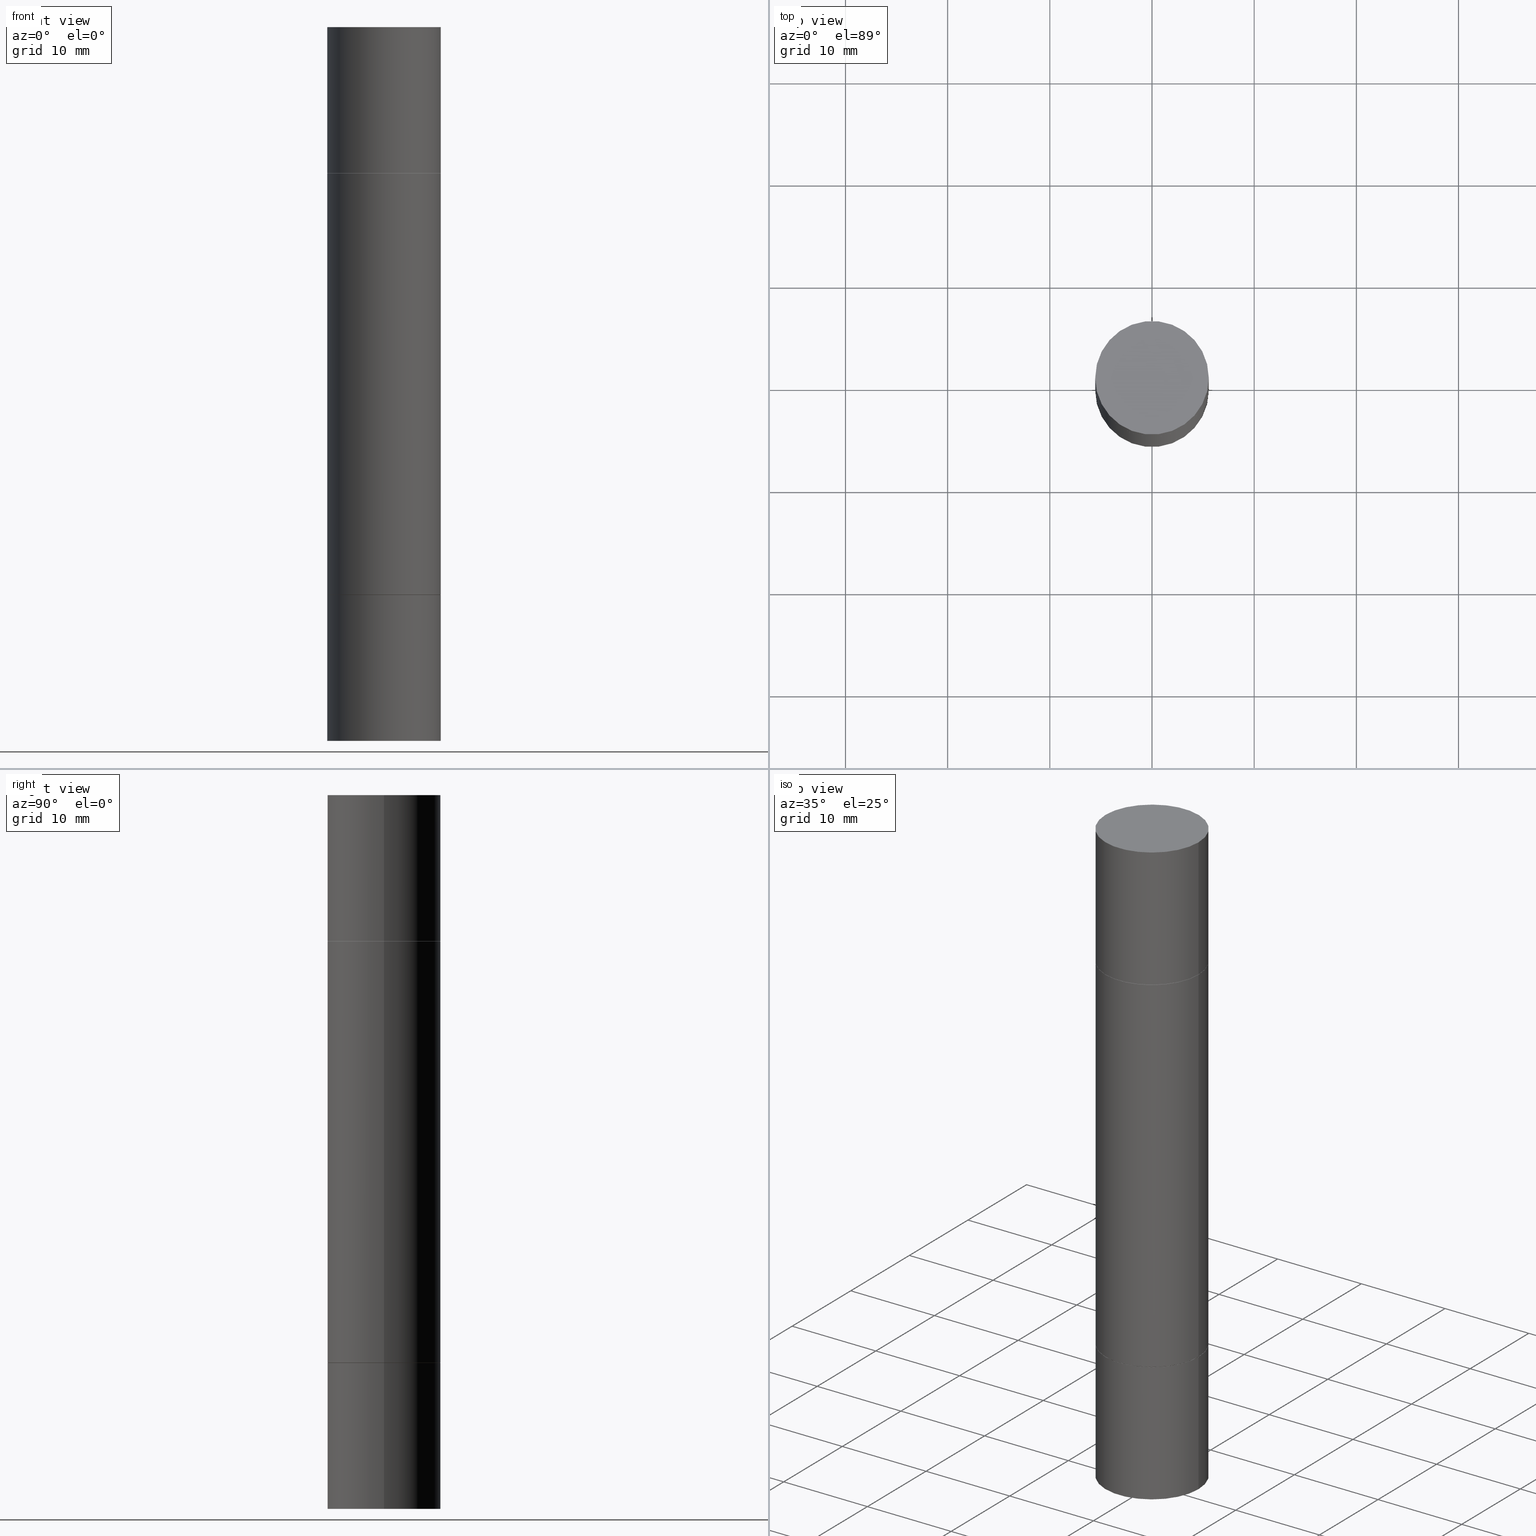
[diagram: canonical four-view strip — front | top / right | iso, engineering-drawing reading convention]
A machine part, canonical four-view strip (front | top / right | iso — engineering-drawing reading convention). The complete STEP part file that produces these views, byte-faithful:
ISO-10303-21;
HEADER;
FILE_DESCRIPTION (( 'STEP AP203' ),
    '1' );
FILE_NAME ('31188.STEP',
    '2024-03-04T15:41:28',
    ( '' ),
    ( '' ),
    'SwSTEP 2.0',
    'SolidWorks 2023',
    '' );
FILE_SCHEMA (( 'CONFIG_CONTROL_DESIGN' ));
ENDSEC;

DATA;
#1 = CIRCLE ( 'NONE', #371, 0.2187500000000000000 ) ;
#2 = CALENDAR_DATE ( 2024, 4, 3 ) ;
#3 = DIRECTION ( 'NONE',  ( 1.000000000000000000, -6.982962677686266711E-15, 0.000000000000000000 ) ) ;
#4 = SECURITY_CLASSIFICATION_LEVEL ( 'unclassified' ) ;
#5 = PLANE ( 'NONE',  #330 ) ;
#6 = MECHANICAL_CONTEXT ( 'NONE', #669, 'mechanical' ) ;
#7 = FACE_OUTER_BOUND ( 'NONE', #466, .T. ) ;
#8 = ORIENTED_EDGE ( 'NONE', *, *, #278, .F. ) ;
#9 = AXIS2_PLACEMENT_3D ( 'NONE', #461, #663, #385 ) ;
#10 = DATE_AND_TIME ( #484, #216 ) ;
#11 = DIRECTION ( 'NONE',  ( 1.000000000000000000, -6.982962677686265922E-15, 4.876176775795935793E-29 ) ) ;
#12 = ADVANCED_FACE ( 'NONE', ( #312 ), #672, .F. ) ;
#13 = EDGE_CURVE ( 'NONE', #513, #402, #413, .T. ) ;
#14 = ADVANCED_FACE ( 'NONE', ( #104 ), #363, .T. ) ;
#15 = FACE_OUTER_BOUND ( 'NONE', #660, .T. ) ;
#16 = CARTESIAN_POINT ( 'NONE',  ( -0.2187500000000000000, -8.102777219780460014E-15, -2.749999999999999556 ) ) ;
#17 = VERTEX_POINT ( 'NONE', #317 ) ;
#18 = AXIS2_PLACEMENT_3D ( 'NONE', #64, #581, #533 ) ;
#19 = AXIS2_PLACEMENT_3D ( 'NONE', #88, #31, #151 ) ;
#20 = DIRECTION ( 'NONE',  ( 1.000000000000000000, -6.982962677686267499E-15, 0.000000000000000000 ) ) ;
#21 = DIRECTION ( 'NONE',  ( -2.445468806185136597E-29, 3.491481338843145583E-15, 1.000000000000000000 ) ) ;
#22 = VERTEX_POINT ( 'NONE', #476 ) ;
#23 = ORIENTED_EDGE ( 'NONE', *, *, #595, .T. ) ;
#24 = CYLINDRICAL_SURFACE ( 'NONE', #553, 0.2187499999999998612 ) ;
#25 = ORIENTED_EDGE ( 'NONE', *, *, #213, .F. ) ;
#26 = EDGE_LOOP ( 'NONE', ( #124, #191 ) ) ;
#27 = DIRECTION ( 'NONE',  ( 1.000000000000000000, -6.982962677686267499E-15, 0.000000000000000000 ) ) ;
#28 = DIRECTION ( 'NONE',  ( 1.000000000000000000, -6.982962677686265922E-15, 9.839502134516470631E-33 ) ) ;
#29 = PRODUCT ( '31188', '31188', '', ( #6 ) ) ;
#30 = VERTEX_POINT ( 'NONE', #677 ) ;
#31 = DIRECTION ( 'NONE',  ( -2.445468806185136597E-29, 3.491481338843145583E-15, 1.000000000000000000 ) ) ;
#32 = CIRCLE ( 'NONE', #225, 0.2187500000000000000 ) ;
#33 = VECTOR ( 'NONE', #253, 39.37007874015748143 ) ;
#34 = DIRECTION ( 'NONE',  ( -2.445468806185136597E-29, 3.491481338843145583E-15, 1.000000000000000000 ) ) ;
#35 = ORIENTED_EDGE ( 'NONE', *, *, #382, .T. ) ;
#36 = ORIENTED_EDGE ( 'NONE', *, *, #579, .T. ) ;
#37 = EDGE_CURVE ( 'NONE', #391, #645, #321, .T. ) ;
#38 = EDGE_CURVE ( 'NONE', #491, #30, #623, .T. ) ;
#39 = EDGE_CURVE ( 'NONE', #361, #654, #271, .T. ) ;
#40 = DIRECTION ( 'NONE',  ( 1.000000000000000000, -6.982962677686266711E-15, 0.000000000000000000 ) ) ;
#41 = DIRECTION ( 'NONE',  ( -2.445468806185136597E-29, -3.492890411551752677E-15, -1.000000000000000000 ) ) ;
#42 = CLOSED_SHELL ( 'NONE', ( #580, #158, #561, #437 ) ) ;
#43 = LINE ( 'NONE', #249, #453 ) ;
#44 = DIRECTION ( 'NONE',  ( 2.445468806185136597E-29, 3.492890411551752677E-15, 1.000000000000000000 ) ) ;
#45 = EDGE_CURVE ( 'NONE', #361, #30, #43, .T. ) ;
#46 = CARTESIAN_POINT ( 'NONE',  ( 0.2187499999999998612, -1.113103424253685260E-14, -2.749999999999999556 ) ) ;
#47 = DIRECTION ( 'NONE',  ( 1.000000000000000000, -6.982962677686266711E-15, 0.000000000000000000 ) ) ;
#48 = APPLICATION_PROTOCOL_DEFINITION ( 'international standard', 'config_control_design', 1994, #181 ) ;
#49 = DIRECTION ( 'NONE',  ( -0.000000000000000000, -3.492185875197449130E-15, -1.000000000000000000 ) ) ;
#50 = COORDINATED_UNIVERSAL_TIME_OFFSET ( 5, 0, .BEHIND. ) ;
#51 = CIRCLE ( 'NONE', #108, 0.2177499999999999991 ) ;
#52 = MANIFOLD_SOLID_BREP ( 'Combine1', #178 ) ;
#53 = DIRECTION ( 'NONE',  ( -1.000000000000000000, 6.982962677686265922E-15, -9.839502134516470631E-33 ) ) ;
#54 = DATE_AND_TIME ( #320, #387 ) ;
#55 = CARTESIAN_POINT ( 'NONE',  ( 0.2187500000000000000, -3.488590022061618704E-15, -0.5619999999999996110 ) ) ;
#56 = DATE_AND_TIME ( #2, #323 ) ;
#57 = MANIFOLD_SOLID_BREP ( 'Mirror1[1]', #411 ) ;
#58 = DIRECTION ( 'NONE',  ( -2.445468806185136597E-29, -3.492890411551752677E-15, -1.000000000000000000 ) ) ;
#59 = DIRECTION ( 'NONE',  ( -2.445468806185136597E-29, 3.491481338843145583E-15, 1.000000000000000000 ) ) ;
#60 = EDGE_CURVE ( 'NONE', #402, #513, #143, .T. ) ;
#61 = AXIS2_PLACEMENT_3D ( 'NONE', #275, #59, #376 ) ;
#62 = CIRCLE ( 'NONE', #642, 0.2187500000000000000 ) ;
#63 = DIRECTION ( 'NONE',  ( 2.445468806185136597E-29, 3.492890411551752677E-15, 1.000000000000000000 ) ) ;
#64 = CARTESIAN_POINT ( 'NONE',  ( 5.350685747933077986E-29, -1.961066936317747467E-15, -0.5619999999999996110 ) ) ;
#65 = LINE ( 'NONE', #552, #441 ) ;
#66 = CARTESIAN_POINT ( 'NONE',  ( 6.725039217009124520E-29, 1.937474974335603146E-18, 5.463695987328526437E-16 ) ) ;
#67 = ORIENTED_EDGE ( 'NONE', *, *, #579, .F. ) ;
#68 = CYLINDRICAL_SURFACE ( 'NONE', #74, 0.2187499999999998612 ) ;
#69 = CARTESIAN_POINT ( 'NONE',  ( -0.2187499999999998612, -8.102777219780461591E-15, -2.749999999999999556 ) ) ;
#70 = ORIENTED_EDGE ( 'NONE', *, *, #278, .T. ) ;
#71 = AXIS2_PLACEMENT_3D ( 'NONE', #421, #49, #367 ) ;
#72 = CIRCLE ( 'NONE', #345, 0.2187500000000000000 ) ;
#73 = ORIENTED_EDGE ( 'NONE', *, *, #482, .F. ) ;
#74 = AXIS2_PLACEMENT_3D ( 'NONE', #495, #229, #27 ) ;
#75 = CARTESIAN_POINT ( 'NONE',  ( -0.2187500000000000000, 5.211692063408171100E-16, -0.5619999999999996110 ) ) ;
#76 = CARTESIAN_POINT ( 'NONE',  ( 5.350685747933077986E-29, -7.639361169388800962E-15, -2.187999999999999723 ) ) ;
#77 = DESIGN_CONTEXT ( 'detailed design', #181, 'design' ) ;
#78 = ORIENTED_EDGE ( 'NONE', *, *, #506, .F. ) ;
#79 = ORIENTED_EDGE ( 'NONE', *, *, #60, .T. ) ;
#80 = PLANE ( 'NONE',  #250 ) ;
#81 = ORIENTED_EDGE ( 'NONE', *, *, #594, .F. ) ;
#82 = VERTEX_POINT ( 'NONE', #519 ) ;
#83 = DIRECTION ( 'NONE',  ( -2.445468806185136877E-29, -3.492890411551753071E-15, -1.000000000000000000 ) ) ;
#84 = EDGE_LOOP ( 'NONE', ( #67, #661, #338, #142 ) ) ;
#85 = EDGE_CURVE ( 'NONE', #232, #184, #223, .T. ) ;
#86 = EDGE_CURVE ( 'NONE', #184, #289, #473, .T. ) ;
#87 = EDGE_LOOP ( 'NONE', ( #499, #394 ) ) ;
#88 = CARTESIAN_POINT ( 'NONE',  ( 5.350685747933077986E-29, -7.639361169388800962E-15, -2.187999999999999723 ) ) ;
#89 = EDGE_CURVE ( 'NONE', #564, #551, #368, .T. ) ;
#90 = AXIS2_PLACEMENT_3D ( 'NONE', #652, #233, #400 ) ;
#91 = DIRECTION ( 'NONE',  ( -2.445468806185136597E-29, 3.491481338843145583E-15, 1.000000000000000000 ) ) ;
#92 = VERTEX_POINT ( 'NONE', #101 ) ;
#93 = CARTESIAN_POINT ( 'NONE',  ( -0.2187500000000000000, 5.211692063408171100E-16, -0.5619999999999996110 ) ) ;
#94 = DIRECTION ( 'NONE',  ( 2.438088387897960049E-29, -3.491481338843145188E-15, -1.000000000000000000 ) ) ;
#95 = CARTESIAN_POINT ( 'NONE',  ( -0.2187499999999998612, -1.881939396806789345E-15, -1.374999999999999778 ) ) ;
#96 = ADVANCED_FACE ( 'NONE', ( #523 ), #254, .T. ) ;
#97 = DIRECTION ( 'NONE',  ( 2.445468806185136597E-29, 3.492890411551752677E-15, 1.000000000000000000 ) ) ;
#98 = LINE ( 'NONE', #571, #302 ) ;
#99 = VECTOR ( 'NONE', #643, 39.37007874015748143 ) ;
#100 = SECURITY_CLASSIFICATION ( '', '', #4 ) ;
#101 = CARTESIAN_POINT ( 'NONE',  ( -0.2177499999999999991, -6.086855907922961200E-15, -2.187999999999999723 ) ) ;
#102 = DATE_TIME_ROLE ( 'classification_date' ) ;
#103 = PERSON ( 'UNSPECIFIED', 'UNSPECIFIED', 'UNSPECIFIED', ('UNSPECIFIED'), ('UNSPECIFIED'), ('UNSPECIFIED') ) ;
#104 = FACE_OUTER_BOUND ( 'NONE', #619, .T. ) ;
#105 = PERSON_AND_ORGANIZATION ( #103, #457 ) ;
#106 = CARTESIAN_POINT ( 'NONE',  ( 6.725039217009124520E-29, 1.937474974335603146E-18, 5.463695987328526437E-16 ) ) ;
#107 = ADVANCED_FACE ( 'NONE', ( #155 ), #259, .T. ) ;
#108 = AXIS2_PLACEMENT_3D ( 'NONE', #319, #381, #428 ) ;
#109 = DIRECTION ( 'NONE',  ( 2.445468806185136597E-29, 3.492890411551752677E-15, 1.000000000000000000 ) ) ;
#110 = PERSON_AND_ORGANIZATION_ROLE ( 'creator' ) ;
#111 = DIRECTION ( 'NONE',  ( 1.000000000000000000, -6.982962677686267499E-15, 0.000000000000000000 ) ) ;
#112 = EDGE_LOOP ( 'NONE', ( #78, #296, #556, #429 ) ) ;
#113 = DIRECTION ( 'NONE',  ( 2.438088387897959769E-29, 3.492890411551753071E-15, 1.000000000000000000 ) ) ;
#114 = CC_DESIGN_PERSON_AND_ORGANIZATION_ASSIGNMENT ( #166, #325, ( #480 ) ) ;
#115 = APPROVAL ( #524, 'UNSPECIFIED' ) ;
#116 = FACE_OUTER_BOUND ( 'NONE', #498, .T. ) ;
#117 = ORIENTED_EDGE ( 'NONE', *, *, #89, .T. ) ;
#118 = AXIS2_PLACEMENT_3D ( 'NONE', #568, #91, #514 ) ;
#119 = CONICAL_SURFACE ( 'NONE', #227, 0.2177499999999999991, 0.7853981633973970977 ) ;
#120 = PLANE ( 'NONE',  #90 ) ;
#121 = DIRECTION ( 'NONE',  ( -2.445468806185136597E-29, -3.492890411551752677E-15, -1.000000000000000000 ) ) ;
#122 = EDGE_LOOP ( 'NONE', ( #177, #403, #511, #607 ) ) ;
#123 = DIRECTION ( 'NONE',  ( -2.445468806185136597E-29, -3.492890411551752677E-15, -1.000000000000000000 ) ) ;
#124 = ORIENTED_EDGE ( 'NONE', *, *, #256, .F. ) ;
#125 = ORIENTED_EDGE ( 'NONE', *, *, #135, .F. ) ;
#126 = DIRECTION ( 'NONE',  ( 1.000000000000000000, -6.982962677686269077E-15, 0.000000000000000000 ) ) ;
#127 = EDGE_LOOP ( 'NONE', ( #8, #247, #464, #139 ) ) ;
#128 = CIRCLE ( 'NONE', #61, 0.2187500000000000000 ) ;
#129 = APPROVAL_PERSON_ORGANIZATION ( #481, #115, #628 ) ;
#130 = CARTESIAN_POINT ( 'NONE',  ( 0.2187500000000000000, -3.488590022061618704E-15, -0.5619999999999996110 ) ) ;
#131 = ORIENTED_EDGE ( 'NONE', *, *, #148, .T. ) ;
#132 = EDGE_LOOP ( 'NONE', ( #593, #117 ) ) ;
#133 = DIRECTION ( 'NONE',  ( 1.000000000000000000, -6.982962677686262766E-15, 0.000000000000000000 ) ) ;
#134 = DIRECTION ( 'NONE',  ( 1.000000000000000000, -6.982962677686266711E-15, 0.000000000000000000 ) ) ;
#135 = EDGE_CURVE ( 'NONE', #645, #391, #206, .T. ) ;
#136 = EDGE_CURVE ( 'NONE', #17, #22, #358, .T. ) ;
#137 = ORIENTED_EDGE ( 'NONE', *, *, #266, .T. ) ;
#138 = ADVANCED_FACE ( 'NONE', ( #15 ), #204, .T. ) ;
#139 = ORIENTED_EDGE ( 'NONE', *, *, #45, .F. ) ;
#140 = FACE_OUTER_BOUND ( 'NONE', #547, .T. ) ;
#141 = CARTESIAN_POINT ( 'NONE',  ( 5.348240279126892383E-29, -1.964559826729300003E-15, -0.5629999999999997229 ) ) ;
#142 = ORIENTED_EDGE ( 'NONE', *, *, #222, .F. ) ;
#143 = CIRCLE ( 'NONE', #656, 0.2177499999999999991 ) ;
#144 = VECTOR ( 'NONE', #543, 39.37007874015748143 ) ;
#145 = DIRECTION ( 'NONE',  ( 2.438088387897960049E-29, -3.491481338843145188E-15, -1.000000000000000000 ) ) ;
#146 = AXIS2_PLACEMENT_3D ( 'NONE', #590, #449, #133 ) ;
#147 = CARTESIAN_POINT ( 'NONE',  ( 1.527523085743924091E-15, 0.2187499999999980294, -0.5620000000000004992 ) ) ;
#148 = EDGE_CURVE ( 'NONE', #184, #232, #671, .T. ) ;
#149 = DIRECTION ( 'NONE',  ( 1.000000000000000000, -6.982962677686267499E-15, 0.000000000000000000 ) ) ;
#150 = CARTESIAN_POINT ( 'NONE',  ( 5.348240279126892383E-29, -1.964559826729300003E-15, -0.5629999999999997229 ) ) ;
#151 = DIRECTION ( 'NONE',  ( 1.000000000000000000, -6.982962677686266711E-15, 0.000000000000000000 ) ) ;
#152 = DIRECTION ( 'NONE',  ( -1.000000000000000000, 6.982962677686265922E-15, -4.876176775795935793E-29 ) ) ;
#153 = CIRCLE ( 'NONE', #510, 0.2187500000000000000 ) ;
#154 = CC_DESIGN_APPROVAL ( #238, ( #314 ) ) ;
#155 = FACE_OUTER_BOUND ( 'NONE', #646, .T. ) ;
#156 = MANIFOLD_SOLID_BREP ( 'Body-Move/Copy2[1]', #474 ) ;
#157 = DIRECTION ( 'NONE',  ( 1.000000000000000000, -6.982962677686266711E-15, 0.000000000000000000 ) ) ;
#158 = ADVANCED_FACE ( 'NONE', ( #7 ), #5, .T. ) ;
#159 = ADVANCED_FACE ( 'NONE', ( #161 ), #583, .T. ) ;
#160 = EDGE_CURVE ( 'NONE', #490, #82, #128, .T. ) ;
#161 = FACE_OUTER_BOUND ( 'NONE', #655, .T. ) ;
#162 = ORIENTED_EDGE ( 'NONE', *, *, #313, .T. ) ;
#163 = PERSON_AND_ORGANIZATION ( #103, #457 ) ;
#164 = CARTESIAN_POINT ( 'NONE',  ( 5.350685747933077986E-29, -1.961066936317747467E-15, -0.5619999999999996110 ) ) ;
#165 = CIRCLE ( 'NONE', #146, 0.2187500000000000000 ) ;
#166 = PERSON_AND_ORGANIZATION ( #103, #457 ) ;
#167 = FACE_OUTER_BOUND ( 'NONE', #127, .T. ) ;
#168 = DIRECTION ( 'NONE',  ( 1.000000000000000000, -6.982962677686267499E-15, 0.000000000000000000 ) ) ;
#169 = DIRECTION ( 'NONE',  ( -2.445468806185136597E-29, 3.491481338843145583E-15, 1.000000000000000000 ) ) ;
#170 = CC_DESIGN_APPROVAL ( #559, ( #480 ) ) ;
#171 = FACE_OUTER_BOUND ( 'NONE', #84, .T. ) ;
#172 = ORIENTED_EDGE ( 'NONE', *, *, #37, .F. ) ;
#173 = ORIENTED_EDGE ( 'NONE', *, *, #627, .F. ) ;
#174 = CARTESIAN_POINT ( 'NONE',  ( 0.2187500000000000000, -1.113103424253685260E-14, -2.749999999999999556 ) ) ;
#175 = DIRECTION ( 'NONE',  ( 1.000000000000000000, -6.982962677686262766E-15, 0.000000000000000000 ) ) ;
#176 = ORIENTED_EDGE ( 'NONE', *, *, #638, .T. ) ;
#177 = ORIENTED_EDGE ( 'NONE', *, *, #595, .F. ) ;
#178 = CLOSED_SHELL ( 'NONE', ( #650, #528, #637, #442, #138, #207, #420, #187 ) ) ;
#179 = CARTESIAN_POINT ( 'NONE',  ( 5.350685747933077986E-29, -1.961066936317747467E-15, -0.5619999999999996110 ) ) ;
#180 = FACE_OUTER_BOUND ( 'NONE', #235, .T. ) ;
#181 = APPLICATION_CONTEXT ( 'configuration controlled 3d designs of mechanical parts and assemblies' ) ;
#182 = ORIENTED_EDGE ( 'NONE', *, *, #537, .F. ) ;
#183 = VECTOR ( 'NONE', #430, 39.37007874015748143 ) ;
#184 = VERTEX_POINT ( 'NONE', #483 ) ;
#185 = VECTOR ( 'NONE', #545, 39.37007874015748143 ) ;
#186 = DIRECTION ( 'NONE',  ( 2.438088387897959769E-29, 3.492890411551753071E-15, 1.000000000000000000 ) ) ;
#187 = ADVANCED_FACE ( 'NONE', ( #116 ), #529, .F. ) ;
#188 = CARTESIAN_POINT ( 'NONE',  ( 0.2177499999999999991, -3.481607059383932295E-15, -0.5619999999999996110 ) ) ;
#189 = EDGE_LOOP ( 'NONE', ( #81, #502 ) ) ;
#190 = EDGE_CURVE ( 'NONE', #599, #226, #369, .T. ) ;
#191 = ORIENTED_EDGE ( 'NONE', *, *, #638, .F. ) ;
#192 = CARTESIAN_POINT ( 'NONE',  ( -0.2187499999999998612, -8.102777219780461591E-15, -2.749999999999999556 ) ) ;
#193 = DIRECTION ( 'NONE',  ( 0.000000000000000000, 3.492185875197449524E-15, 1.000000000000000000 ) ) ;
#194 = EDGE_LOOP ( 'NONE', ( #606, #550, #613, #228 ) ) ;
#195 = DIRECTION ( 'NONE',  ( 1.000000000000000000, -6.982962677686266711E-15, 0.000000000000000000 ) ) ;
#196 = AXIS2_PLACEMENT_3D ( 'NONE', #624, #44, #252 ) ;
#197 = VECTOR ( 'NONE', #343, 39.37007874015748143 ) ;
#198 = CARTESIAN_POINT ( 'NONE',  ( 5.350685747933077986E-29, -1.961066936317747467E-15, -0.5619999999999996110 ) ) ;
#199 = ORIENTED_EDGE ( 'NONE', *, *, #676, .T. ) ;
#200 = PLANE ( 'NONE',  #416 ) ;
#201 = DIRECTION ( 'NONE',  ( -2.445468806185136877E-29, -3.492890411551753071E-15, -1.000000000000000000 ) ) ;
#202 = CARTESIAN_POINT ( 'NONE',  ( 0.2187499999999999445, -3.492082912473170057E-15, -0.5629999999999997229 ) ) ;
#203 = CARTESIAN_POINT ( 'NONE',  ( 0.000000000000000000, -9.603511156792982543E-15, -2.749999999999999556 ) ) ;
#204 = CONICAL_SURFACE ( 'NONE', #431, 0.2177499999999999991, 0.7853981633973970977 ) ;
#205 = EDGE_CURVE ( 'NONE', #300, #490, #586, .T. ) ;
#206 = CIRCLE ( 'NONE', #589, 0.2187499999999999445 ) ;
#207 = ADVANCED_FACE ( 'NONE', ( #273 ), #219, .T. ) ;
#208 = AXIS2_PLACEMENT_3D ( 'NONE', #217, #328, #375 ) ;
#209 = CARTESIAN_POINT ( 'NONE',  ( 5.348240279126892383E-29, -1.964559826729300003E-15, -0.5629999999999997229 ) ) ;
#210 = APPROVAL_DATE_TIME ( #56, #115 ) ;
#211 = DATE_AND_TIME ( #477, #488 ) ;
#212 = DIRECTION ( 'NONE',  ( -2.438088387897960049E-29, 3.491481338843145188E-15, 1.000000000000000000 ) ) ;
#213 = EDGE_CURVE ( 'NONE', #92, #297, #51, .T. ) ;
#214 = AXIS2_PLACEMENT_3D ( 'NONE', #337, #450, #653 ) ;
#215 = DIRECTION ( 'NONE',  ( -2.445468806185136877E-29, -3.492890411551753071E-15, -1.000000000000000000 ) ) ;
#216 = LOCAL_TIME ( 10, 41, 28.00000000000000000, #50 ) ;
#217 = CARTESIAN_POINT ( 'NONE',  ( 0.000000000000000000, 0.000000000000000000, 0.000000000000000000 ) ) ;
#218 = ADVANCED_BREP_SHAPE_REPRESENTATION ( '31188', ( #156, #57, #286, #522, #52, #208 ), #359 ) ;
#219 = CYLINDRICAL_SURFACE ( 'NONE', #397, 0.2187499999999998612 ) ;
#220 = CARTESIAN_POINT ( 'NONE',  ( 0.2177499999999999991, -3.481607059383932295E-15, -0.5619999999999996110 ) ) ;
#221 = CARTESIAN_POINT ( 'NONE',  ( 5.350685747933077986E-29, -7.639361169388800962E-15, -2.187999999999999723 ) ) ;
#222 = EDGE_CURVE ( 'NONE', #82, #490, #153, .T. ) ;
#223 = CIRCLE ( 'NONE', #196, 0.2187500000000000000 ) ;
#224 = LINE ( 'NONE', #69, #625 ) ;
#225 = AXIS2_PLACEMENT_3D ( 'NONE', #454, #340, #175 ) ;
#226 = VERTEX_POINT ( 'NONE', #374 ) ;
#227 = AXIS2_PLACEMENT_3D ( 'NONE', #569, #41, #404 ) ;
#228 = ORIENTED_EDGE ( 'NONE', *, *, #594, .T. ) ;
#229 = DIRECTION ( 'NONE',  ( -2.445468806185136597E-29, -3.492890411551752677E-15, -1.000000000000000000 ) ) ;
#230 = DIRECTION ( 'NONE',  ( 1.000000000000000000, -6.982962677686266711E-15, 0.000000000000000000 ) ) ;
#231 = EDGE_LOOP ( 'NONE', ( #610, #36, #463, #451 ) ) ;
#232 = VERTEX_POINT ( 'NONE', #629 ) ;
#233 = DIRECTION ( 'NONE',  ( -2.438088387897959769E-29, -3.492890411551753071E-15, -1.000000000000000000 ) ) ;
#234 = CARTESIAN_POINT ( 'NONE',  ( 5.350685747933077986E-29, -1.961066936317747467E-15, -0.5619999999999996110 ) ) ;
#235 = EDGE_LOOP ( 'NONE', ( #245, #79 ) ) ;
#236 = EDGE_LOOP ( 'NONE', ( #172, #162, #536, #601 ) ) ;
#237 = DIRECTION ( 'NONE',  ( 0.7071067811865112684, -7.407546758114119172E-15, -0.7071067811865837660 ) ) ;
#238 = APPROVAL ( #270, 'UNSPECIFIED' ) ;
#239 = FACE_OUTER_BOUND ( 'NONE', #132, .T. ) ;
#240 = EDGE_LOOP ( 'NONE', ( #341, #70 ) ) ;
#241 = AXIS2_PLACEMENT_3D ( 'NONE', #203, #304, #423 ) ;
#242 = AXIS2_PLACEMENT_3D ( 'NONE', #588, #269, #486 ) ;
#243 = ORIENTED_EDGE ( 'NONE', *, *, #407, .T. ) ;
#244 = DIRECTION ( 'NONE',  ( 0.000000000000000000, 1.000000000000000000, -3.492185875197449524E-15 ) ) ;
#245 = ORIENTED_EDGE ( 'NONE', *, *, #13, .T. ) ;
#246 = CARTESIAN_POINT ( 'NONE',  ( -0.2177499999999999991, -4.655096935098871103E-16, -0.5619999999999996110 ) ) ;
#247 = ORIENTED_EDGE ( 'NONE', *, *, #627, .T. ) ;
#248 = DIRECTION ( 'NONE',  ( -1.000000000000000000, 6.982962677686265922E-15, -9.839502134516470631E-33 ) ) ;
#249 = CARTESIAN_POINT ( 'NONE',  ( 0.2177499999999999991, -3.481607059383932295E-15, -0.5619999999999996110 ) ) ;
#250 = AXIS2_PLACEMENT_3D ( 'NONE', #396, #604, #28 ) ;
#251 = CYLINDRICAL_SURFACE ( 'NONE', #531, 0.2187500000000000000 ) ;
#252 = DIRECTION ( 'NONE',  ( 1.000000000000000000, -6.982962677686266711E-15, 0.000000000000000000 ) ) ;
#253 = DIRECTION ( 'NONE',  ( -2.445468806185136877E-29, -3.492890411551753071E-15, -1.000000000000000000 ) ) ;
#254 = CYLINDRICAL_SURFACE ( 'NONE', #241, 0.2187500000000000000 ) ;
#255 = ADVANCED_FACE ( 'NONE', ( #167 ), #633, .T. ) ;
#256 = EDGE_CURVE ( 'NONE', #444, #505, #72, .T. ) ;
#257 = PERSON_AND_ORGANIZATION ( #103, #457 ) ;
#258 = CC_DESIGN_PERSON_AND_ORGANIZATION_ASSIGNMENT ( #257, #260, ( #100 ) ) ;
#259 = PLANE ( 'NONE',  #468 ) ;
#260 = PERSON_AND_ORGANIZATION_ROLE ( 'classification_officer' ) ;
#261 = AXIS2_PLACEMENT_3D ( 'NONE', #141, #365, #195 ) ;
#262 = CONICAL_SURFACE ( 'NONE', #641, 0.2177499999999999991, 0.7853981633973970977 ) ;
#263 = VECTOR ( 'NONE', #237, 39.37007874015748143 ) ;
#264 = CARTESIAN_POINT ( 'NONE',  ( 6.725039217009124520E-29, 1.937474974335603146E-18, 5.463695987328526437E-16 ) ) ;
#265 = PERSON_AND_ORGANIZATION ( #103, #457 ) ;
#266 = EDGE_CURVE ( 'NONE', #599, #505, #587, .T. ) ;
#267 = DIRECTION ( 'NONE',  ( 1.000000000000000000, -6.982962677686267499E-15, 0.000000000000000000 ) ) ;
#268 = SHAPE_DEFINITION_REPRESENTATION ( #608, #218 ) ;
#269 = DIRECTION ( 'NONE',  ( -2.445468806185136597E-29, -3.492890411551752677E-15, -1.000000000000000000 ) ) ;
#270 = APPROVAL_STATUS ( 'not_yet_approved' ) ;
#271 = CIRCLE ( 'NONE', #355, 0.2177499999999999991 ) ;
#272 = CIRCLE ( 'NONE', #440, 0.2187499999999999445 ) ;
#273 = FACE_OUTER_BOUND ( 'NONE', #346, .T. ) ;
#274 = LINE ( 'NONE', #220, #263 ) ;
#275 = CARTESIAN_POINT ( 'NONE',  ( 5.350685747933077986E-29, -7.639361169388800962E-15, -2.187999999999999723 ) ) ;
#276 = ORIENTED_EDGE ( 'NONE', *, *, #527, .T. ) ;
#277 = EDGE_CURVE ( 'NONE', #402, #391, #433, .T. ) ;
#278 = EDGE_CURVE ( 'NONE', #654, #361, #479, .T. ) ;
#279 = CARTESIAN_POINT ( 'NONE',  ( 0.2187500000000000000, -9.166884255132671016E-15, -2.187999999999999723 ) ) ;
#280 = CC_DESIGN_DATE_AND_TIME_ASSIGNMENT ( #54, #427, ( #314 ) ) ;
#281 = CYLINDRICAL_SURFACE ( 'NONE', #530, 0.2187500000000000000 ) ;
#282 = ORIENTED_EDGE ( 'NONE', *, *, #277, .F. ) ;
#283 = AXIS2_PLACEMENT_3D ( 'NONE', #570, #94, #152 ) ;
#284 = CARTESIAN_POINT ( 'NONE',  ( 0.000000000000000000, 0.000000000000000000, 0.000000000000000000 ) ) ;
#285 = AXIS2_PLACEMENT_3D ( 'NONE', #221, #212, #11 ) ;
#286 = MANIFOLD_SOLID_BREP ( 'Mirror1[3]', #42 ) ;
#287 = ORIENTED_EDGE ( 'NONE', *, *, #435, .T. ) ;
#288 = CC_DESIGN_APPROVAL ( #115, ( #100 ) ) ;
#289 = VERTEX_POINT ( 'NONE', #55 ) ;
#290 = CARTESIAN_POINT ( 'NONE',  ( -0.2177499999999999991, -6.092154362271183602E-15, -2.187999999999999723 ) ) ;
#291 = DIRECTION ( 'NONE',  ( 1.000000000000000000, -6.982962677686266711E-15, 0.000000000000000000 ) ) ;
#292 = ORIENTED_EDGE ( 'NONE', *, *, #45, .T. ) ;
#293 = CC_DESIGN_PERSON_AND_ORGANIZATION_ASSIGNMENT ( #631, #434, ( #29 ) ) ;
#294 = ORIENTED_EDGE ( 'NONE', *, *, #506, .T. ) ;
#295 = FACE_OUTER_BOUND ( 'NONE', #112, .T. ) ;
#296 = ORIENTED_EDGE ( 'NONE', *, *, #213, .T. ) ;
#297 = VERTEX_POINT ( 'NONE', #509 ) ;
#298 =( CONVERSION_BASED_UNIT ( 'INCH', #666 ) LENGTH_UNIT ( ) NAMED_UNIT ( #356 ) );
#299 = CARTESIAN_POINT ( 'NONE',  ( 0.000000000000000000, -9.603511156792982543E-15, -2.749999999999999556 ) ) ;
#300 = VERTEX_POINT ( 'NONE', #504 ) ;
#301 = AXIS2_PLACEMENT_3D ( 'NONE', #106, #636, #3 ) ;
#302 = VECTOR ( 'NONE', #673, 39.37007874015748143 ) ;
#303 = CIRCLE ( 'NONE', #658, 0.2187500000000000000 ) ;
#304 = DIRECTION ( 'NONE',  ( -2.445468806185136597E-29, -3.492890411551752677E-15, -1.000000000000000000 ) ) ;
#305 = ORIENTED_EDGE ( 'NONE', *, *, #60, .F. ) ;
#306 = DIRECTION ( 'NONE',  ( -2.445468806185136877E-29, -3.492890411551753071E-15, -1.000000000000000000 ) ) ;
#307 = DIRECTION ( 'NONE',  ( 2.438088387897959769E-29, 3.492890411551753071E-15, 1.000000000000000000 ) ) ;
#308 = CARTESIAN_POINT ( 'NONE',  ( 1.527523085743924091E-15, 0.2187499999999923395, -2.188000000000000611 ) ) ;
#309 = DIRECTION ( 'NONE',  ( 2.445468806185136597E-29, 3.492890411551752677E-15, 1.000000000000000000 ) ) ;
#310 = CIRCLE ( 'NONE', #9, 0.2187499999999998612 ) ;
#311 = CARTESIAN_POINT ( 'NONE',  ( -0.2187500000000000000, 1.554312234475219157E-15, -1.076017050993260622E-29 ) ) ;
#312 = FACE_OUTER_BOUND ( 'NONE', #26, .T. ) ;
#313 = EDGE_CURVE ( 'NONE', #391, #17, #224, .T. ) ;
#314 = PRODUCT_DEFINITION ( 'UNKNOWN', '', #480, #77 ) ;
#315 = APPROVAL_ROLE ( '' ) ;
#316 = ADVANCED_FACE ( 'NONE', ( #390 ), #281, .T. ) ;
#317 = CARTESIAN_POINT ( 'NONE',  ( -0.2187499999999999445, -3.300052903896800034E-15, -2.186999999999999833 ) ) ;
#318 = APPROVAL_STATUS ( 'not_yet_approved' ) ;
#319 = CARTESIAN_POINT ( 'NONE',  ( 5.350685747933077986E-29, -7.639361169388800962E-15, -2.187999999999999723 ) ) ;
#320 = CALENDAR_DATE ( 2024, 4, 3 ) ;
#321 = CIRCLE ( 'NONE', #261, 0.2187499999999999445 ) ;
#322 = CIRCLE ( 'NONE', #415, 0.2187499999999999445 ) ;
#323 = LOCAL_TIME ( 10, 41, 28.00000000000000000, #424 ) ;
#324 = CARTESIAN_POINT ( 'NONE',  ( -0.2177499999999999991, -4.671934973029966481E-16, -0.5619999999999996110 ) ) ;
#325 = PERSON_AND_ORGANIZATION_ROLE ( 'creator' ) ;
#326 = DIRECTION ( 'NONE',  ( -2.445468806185136597E-29, 3.491481338843145583E-15, 1.000000000000000000 ) ) ;
#327 = ORIENTED_EDGE ( 'NONE', *, *, #676, .F. ) ;
#328 = DIRECTION ( 'NONE',  ( 0.000000000000000000, 0.000000000000000000, 1.000000000000000000 ) ) ;
#329 = CARTESIAN_POINT ( 'NONE',  ( 0.000000000000000000, -9.603511156792982543E-15, -2.749999999999999556 ) ) ;
#330 = AXIS2_PLACEMENT_3D ( 'NONE', #384, #113, #53 ) ;
#331 = CARTESIAN_POINT ( 'NONE',  ( -0.2187500000000000000, -8.102777219780460014E-15, -2.749999999999999556 ) ) ;
#332 = VECTOR ( 'NONE', #306, 39.37007874015748143 ) ;
#333 = EDGE_CURVE ( 'NONE', #448, #300, #32, .T. ) ;
#334 = ADVANCED_FACE ( 'NONE', ( #546 ), #501, .T. ) ;
#335 = ADVANCED_FACE ( 'NONE', ( #171 ), #393, .T. ) ;
#336 = LINE ( 'NONE', #290, #185 ) ;
#337 = CARTESIAN_POINT ( 'NONE',  ( 0.000000000000000000, -9.603511156792982543E-15, -2.749999999999999556 ) ) ;
#338 = ORIENTED_EDGE ( 'NONE', *, *, #205, .T. ) ;
#339 = LINE ( 'NONE', #174, #99 ) ;
#340 = DIRECTION ( 'NONE',  ( -2.445468806185136597E-29, 3.491481338843145583E-15, 1.000000000000000000 ) ) ;
#341 = ORIENTED_EDGE ( 'NONE', *, *, #39, .T. ) ;
#342 = ORIENTED_EDGE ( 'NONE', *, *, #13, .F. ) ;
#343 = DIRECTION ( 'NONE',  ( -2.445468806185136877E-29, -3.492890411551753071E-15, -1.000000000000000000 ) ) ;
#344 = UNCERTAINTY_MEASURE_WITH_UNIT (LENGTH_MEASURE( 1.000000000000000082E-05 ), #298, 'distance_accuracy_value', 'NONE');
#345 = AXIS2_PLACEMENT_3D ( 'NONE', #164, #109, #168 ) ;
#346 = EDGE_LOOP ( 'NONE', ( #555, #125, #398, #651 ) ) ;
#347 = FACE_OUTER_BOUND ( 'NONE', #236, .T. ) ;
#348 = DIRECTION ( 'NONE',  ( 1.000000000000000000, -6.982962677686267499E-15, 0.000000000000000000 ) ) ;
#349 = ORIENTED_EDGE ( 'NONE', *, *, #435, .F. ) ;
#350 = EDGE_LOOP ( 'NONE', ( #305, #560, #558, #182 ) ) ;
#351 = FACE_OUTER_BOUND ( 'NONE', #194, .T. ) ;
#352 = ORIENTED_EDGE ( 'NONE', *, *, #266, .F. ) ;
#353 = ORIENTED_EDGE ( 'NONE', *, *, #460, .F. ) ;
#354 = DIRECTION ( 'NONE',  ( -2.445468806185136877E-29, 3.491481338843145188E-15, 1.000000000000000000 ) ) ;
#355 = AXIS2_PLACEMENT_3D ( 'NONE', #574, #97, #525 ) ;
#356 = DIMENSIONAL_EXPONENTS ( 1.000000000000000000, 0.000000000000000000, 0.000000000000000000, 0.000000000000000000, 0.000000000000000000, 0.000000000000000000, 0.000000000000000000 ) ;
#357 = DIRECTION ( 'NONE',  ( 1.000000000000000000, -6.982962677686266711E-15, 0.000000000000000000 ) ) ;
#358 = CIRCLE ( 'NONE', #118, 0.2187499999999999445 ) ;
#359 =( GEOMETRIC_REPRESENTATION_CONTEXT ( 3 ) GLOBAL_UNCERTAINTY_ASSIGNED_CONTEXT ( ( #344 ) ) GLOBAL_UNIT_ASSIGNED_CONTEXT ( ( #298, #412, #362 ) ) REPRESENTATION_CONTEXT ( 'NONE', 'WORKASPACE' ) );
#360 = EDGE_CURVE ( 'NONE', #22, #17, #272, .T. ) ;
#361 = VERTEX_POINT ( 'NONE', #188 ) ;
#362 =( NAMED_UNIT ( * ) SI_UNIT ( $, .STERADIAN. ) SOLID_ANGLE_UNIT ( ) );
#363 = PLANE ( 'NONE',  #283 ) ;
#364 = DIRECTION ( 'NONE',  ( 1.000000000000000000, -6.982962677686267499E-15, 0.000000000000000000 ) ) ;
#365 = DIRECTION ( 'NONE',  ( 2.445468806185136597E-29, 3.492890411551752677E-15, 1.000000000000000000 ) ) ;
#366 = DIRECTION ( 'NONE',  ( -2.445468806185136597E-29, -3.492890411551752677E-15, -1.000000000000000000 ) ) ;
#367 = DIRECTION ( 'NONE',  ( 0.000000000000000000, 1.000000000000000000, -3.746534391310991923E-15 ) ) ;
#368 = CIRCLE ( 'NONE', #71, 0.2187499999999998612 ) ;
#369 = CIRCLE ( 'NONE', #301, 0.2187500000000000000 ) ;
#370 = DATE_AND_TIME ( #635, #614 ) ;
#371 = AXIS2_PLACEMENT_3D ( 'NONE', #662, #573, #364 ) ;
#372 = DIRECTION ( 'NONE',  ( 2.438088387897959769E-29, 3.492890411551753071E-15, 1.000000000000000000 ) ) ;
#373 = PERSON_AND_ORGANIZATION_ROLE ( 'design_supplier' ) ;
#374 = CARTESIAN_POINT ( 'NONE',  ( 0.2187500000000000000, -1.525585610769535201E-15, 5.463695987328526437E-16 ) ) ;
#375 = DIRECTION ( 'NONE',  ( 1.000000000000000000, 0.000000000000000000, 0.000000000000000000 ) ) ;
#376 = DIRECTION ( 'NONE',  ( 1.000000000000000000, -6.982962677686262766E-15, 0.000000000000000000 ) ) ;
#377 = EDGE_LOOP ( 'NONE', ( #173, #395, #292, #243 ) ) ;
#378 = VECTOR ( 'NONE', #201, 39.37007874015748143 ) ;
#379 = AXIS2_PLACEMENT_3D ( 'NONE', #66, #609, #291 ) ;
#380 = CARTESIAN_POINT ( 'NONE',  ( 0.000000000000000000, -9.603511156792982543E-15, -2.749999999999999556 ) ) ;
#381 = DIRECTION ( 'NONE',  ( -2.445468806185136597E-29, 3.491481338843145583E-15, 1.000000000000000000 ) ) ;
#382 = EDGE_CURVE ( 'NONE', #232, #649, #401, .T. ) ;
#383 = ADVANCED_FACE ( 'NONE', ( #443 ), #24, .T. ) ;
#384 = CARTESIAN_POINT ( 'NONE',  ( 1.527523085743937699E-15, 0.2187500000000000000, -5.463695987328526437E-16 ) ) ;
#385 = DIRECTION ( 'NONE',  ( 0.000000000000000000, 1.000000000000000000, -3.746534391310991923E-15 ) ) ;
#386 = AXIS2_PLACEMENT_3D ( 'NONE', #264, #535, #436 ) ;
#387 = LOCAL_TIME ( 10, 41, 28.00000000000000000, #538 ) ;
#388 = DIRECTION ( 'NONE',  ( -2.445468806185136597E-29, 3.491481338843145583E-15, 1.000000000000000000 ) ) ;
#389 = DIRECTION ( 'NONE',  ( 0.7071067811865112684, -2.468850131081876830E-15, 0.7071067811865837660 ) ) ;
#390 = FACE_OUTER_BOUND ( 'NONE', #667, .T. ) ;
#391 = VERTEX_POINT ( 'NONE', #597 ) ;
#392 = ORIENTED_EDGE ( 'NONE', *, *, #492, .F. ) ;
#393 = CYLINDRICAL_SURFACE ( 'NONE', #679, 0.2187500000000000000 ) ;
#394 = ORIENTED_EDGE ( 'NONE', *, *, #222, .T. ) ;
#395 = ORIENTED_EDGE ( 'NONE', *, *, #39, .F. ) ;
#396 = CARTESIAN_POINT ( 'NONE',  ( 5.350685747933077986E-29, -1.961066936317747467E-15, -0.5619999999999996110 ) ) ;
#397 = AXIS2_PLACEMENT_3D ( 'NONE', #329, #58, #111 ) ;
#398 = ORIENTED_EDGE ( 'NONE', *, *, #621, .T. ) ;
#399 = ORIENTED_EDGE ( 'NONE', *, *, #622, .F. ) ;
#400 = DIRECTION ( 'NONE',  ( 1.000000000000000000, -6.982962677686265922E-15, 9.839502134516470631E-33 ) ) ;
#401 = LINE ( 'NONE', #16, #197 ) ;
#402 = VERTEX_POINT ( 'NONE', #639 ) ;
#403 = ORIENTED_EDGE ( 'NONE', *, *, #407, .F. ) ;
#404 = DIRECTION ( 'NONE',  ( 1.000000000000000000, -6.982962677686266711E-15, 0.000000000000000000 ) ) ;
#405 = CARTESIAN_POINT ( 'NONE',  ( 0.000000000000000000, 0.000000000000000000, -1.374999999999999778 ) ) ;
#406 = ADVANCED_FACE ( 'NONE', ( #592 ), #262, .T. ) ;
#407 = EDGE_CURVE ( 'NONE', #30, #491, #322, .T. ) ;
#408 = ORIENTED_EDGE ( 'NONE', *, *, #85, .T. ) ;
#409 = CC_DESIGN_PERSON_AND_ORGANIZATION_ASSIGNMENT ( #265, #110, ( #314 ) ) ;
#410 = ORIENTED_EDGE ( 'NONE', *, *, #537, .T. ) ;
#411 = CLOSED_SHELL ( 'NONE', ( #159, #255, #459, #507, #406, #383 ) ) ;
#412 =( NAMED_UNIT ( * ) PLANE_ANGLE_UNIT ( ) SI_UNIT ( $, .RADIAN. ) );
#413 = CIRCLE ( 'NONE', #670, 0.2177499999999999991 ) ;
#414 = DIRECTION ( 'NONE',  ( 2.445468806185136597E-29, 3.492890411551752677E-15, 1.000000000000000000 ) ) ;
#415 = AXIS2_PLACEMENT_3D ( 'NONE', #446, #497, #554 ) ;
#416 = AXIS2_PLACEMENT_3D ( 'NONE', #308, #145, #618 ) ;
#417 = FACE_OUTER_BOUND ( 'NONE', #350, .T. ) ;
#418 = DIRECTION ( 'NONE',  ( 0.7071067811865112684, -7.407546758114119172E-15, -0.7071067811865837660 ) ) ;
#419 = CARTESIAN_POINT ( 'NONE',  ( 0.2187499999999998612, -1.113103424253685260E-14, -2.749999999999999556 ) ) ;
#420 = ADVANCED_FACE ( 'NONE', ( #295 ), #575, .T. ) ;
#421 = CARTESIAN_POINT ( 'NONE',  ( 3.362519608504561700E-29, -4.800786840909324141E-15, -1.374999999999999778 ) ) ;
#422 = DIRECTION ( 'NONE',  ( -2.445468806185136597E-29, 3.491481338843145583E-15, 1.000000000000000000 ) ) ;
#423 = DIRECTION ( 'NONE',  ( 1.000000000000000000, -6.982962677686262766E-15, 0.000000000000000000 ) ) ;
#424 = COORDINATED_UNIVERSAL_TIME_OFFSET ( 5, 0, .BEHIND. ) ;
#425 = AXIS2_PLACEMENT_3D ( 'NONE', #438, #186, #248 ) ;
#426 = DIRECTION ( 'NONE',  ( 2.445468806185136597E-29, 3.492890411551752677E-15, 1.000000000000000000 ) ) ;
#427 = DATE_TIME_ROLE ( 'creation_date' ) ;
#428 = DIRECTION ( 'NONE',  ( 1.000000000000000000, -6.982962677686266711E-15, 0.000000000000000000 ) ) ;
#429 = ORIENTED_EDGE ( 'NONE', *, *, #136, .F. ) ;
#430 = DIRECTION ( 'NONE',  ( -2.445468806185136877E-29, 3.491481338843145188E-15, 1.000000000000000000 ) ) ;
#431 = AXIS2_PLACEMENT_3D ( 'NONE', #485, #489, #157 ) ;
#432 = CONICAL_SURFACE ( 'NONE', #19, 0.2177499999999999991, 0.7853981633973970977 ) ;
#433 = LINE ( 'NONE', #324, #144 ) ;
#434 = PERSON_AND_ORGANIZATION_ROLE ( 'design_owner' ) ;
#435 = EDGE_CURVE ( 'NONE', #226, #599, #520, .T. ) ;
#436 = DIRECTION ( 'NONE',  ( 1.000000000000000000, -6.982962677686266711E-15, 0.000000000000000000 ) ) ;
#437 = ADVANCED_FACE ( 'NONE', ( #351 ), #563, .T. ) ;
#438 = CARTESIAN_POINT ( 'NONE',  ( 1.527523085743924091E-15, 0.2187499999999980294, -0.5620000000000004992 ) ) ;
#439 = DIRECTION ( 'NONE',  ( 1.000000000000000000, -6.982962677686266711E-15, 4.876176775795935232E-29 ) ) ;
#440 = AXIS2_PLACEMENT_3D ( 'NONE', #659, #388, #126 ) ;
#441 = VECTOR ( 'NONE', #389, 39.37007874015748143 ) ;
#442 = ADVANCED_FACE ( 'NONE', ( #180 ), #80, .F. ) ;
#443 = FACE_OUTER_BOUND ( 'NONE', #122, .T. ) ;
#444 = VERTEX_POINT ( 'NONE', #130 ) ;
#445 = ORIENTED_EDGE ( 'NONE', *, *, #190, .F. ) ;
#446 = CARTESIAN_POINT ( 'NONE',  ( 5.348240279126892383E-29, -1.964559826729300003E-15, -0.5629999999999997229 ) ) ;
#447 = ORIENTED_EDGE ( 'NONE', *, *, #256, .T. ) ;
#448 = VERTEX_POINT ( 'NONE', #557 ) ;
#449 = DIRECTION ( 'NONE',  ( -2.445468806185136597E-29, 3.491481338843145583E-15, 1.000000000000000000 ) ) ;
#450 = DIRECTION ( 'NONE',  ( -2.445468806185136597E-29, -3.492890411551752677E-15, -1.000000000000000000 ) ) ;
#451 = ORIENTED_EDGE ( 'NONE', *, *, #205, .F. ) ;
#452 = CARTESIAN_POINT ( 'NONE',  ( 0.2187499999999998612, -4.910196419563181534E-15, -1.374999999999999778 ) ) ;
#453 = VECTOR ( 'NONE', #418, 39.37007874015748143 ) ;
#454 = CARTESIAN_POINT ( 'NONE',  ( 6.725039217009124520E-29, -9.601573681818649859E-15, -2.750000000000000000 ) ) ;
#455 = AXIS2_PLACEMENT_3D ( 'NONE', #380, #634, #267 ) ;
#456 = ORIENTED_EDGE ( 'NONE', *, *, #333, .F. ) ;
#457 = ORGANIZATION ( 'UNSPECIFIED', 'UNSPECIFIED', '' ) ;
#458 = FACE_OUTER_BOUND ( 'NONE', #664, .T. ) ;
#459 = ADVANCED_FACE ( 'NONE', ( #239 ), #611, .F. ) ;
#460 = EDGE_CURVE ( 'NONE', #551, #564, #310, .T. ) ;
#461 = CARTESIAN_POINT ( 'NONE',  ( 3.362519608504561700E-29, -4.800786840909324141E-15, -1.374999999999999778 ) ) ;
#462 = CC_DESIGN_DATE_AND_TIME_ASSIGNMENT ( #211, #102, ( #100 ) ) ;
#463 = ORIENTED_EDGE ( 'NONE', *, *, #160, .F. ) ;
#464 = ORIENTED_EDGE ( 'NONE', *, *, #38, .T. ) ;
#465 = FACE_OUTER_BOUND ( 'NONE', #87, .T. ) ;
#466 = EDGE_LOOP ( 'NONE', ( #131, #408 ) ) ;
#467 = DIRECTION ( 'NONE',  ( 2.445468806185136597E-29, 3.492890411551752677E-15, 1.000000000000000000 ) ) ;
#468 = AXIS2_PLACEMENT_3D ( 'NONE', #478, #372, #680 ) ;
#469 = DIRECTION ( 'NONE',  ( -1.000000000000000000, 6.982962677686265922E-15, -9.839502134516470631E-33 ) ) ;
#470 = AXIS2_PLACEMENT_3D ( 'NONE', #76, #21, #230 ) ;
#471 = VECTOR ( 'NONE', #354, 39.37007874015748143 ) ;
#472 = LINE ( 'NONE', #192, #332 ) ;
#473 = LINE ( 'NONE', #674, #378 ) ;
#474 = CLOSED_SHELL ( 'NONE', ( #334, #14, #596, #335 ) ) ;
#475 = DIRECTION ( 'NONE',  ( 1.000000000000000000, -6.982962677686262766E-15, 0.000000000000000000 ) ) ;
#476 = CARTESIAN_POINT ( 'NONE',  ( 0.2187499999999999445, -9.163392773793829586E-15, -2.186999999999999833 ) ) ;
#477 = CALENDAR_DATE ( 2024, 4, 3 ) ;
#478 = CARTESIAN_POINT ( 'NONE',  ( 1.527523085743937699E-15, 0.2187500000000000000, -5.463695987328526437E-16 ) ) ;
#479 = CIRCLE ( 'NONE', #18, 0.2177499999999999991 ) ;
#480 = PRODUCT_DEFINITION_FORMATION_WITH_SPECIFIED_SOURCE ( 'ANY', '', #29, .NOT_KNOWN. ) ;
#481 = PERSON_AND_ORGANIZATION ( #103, #457 ) ;
#482 = EDGE_CURVE ( 'NONE', #226, #444, #339, .T. ) ;
#483 = CARTESIAN_POINT ( 'NONE',  ( 0.2187500000000000000, -1.525585610769535201E-15, 5.463695987328526437E-16 ) ) ;
#484 = CALENDAR_DATE ( 2024, 4, 3 ) ;
#485 = CARTESIAN_POINT ( 'NONE',  ( 5.350685747933077986E-29, -1.961066936317747467E-15, -0.5619999999999996110 ) ) ;
#486 = DIRECTION ( 'NONE',  ( 1.000000000000000000, -6.982962677686266711E-15, 0.000000000000000000 ) ) ;
#487 = APPROVAL_DATE_TIME ( #10, #559 ) ;
#488 = LOCAL_TIME ( 10, 41, 28.00000000000000000, #534 ) ;
#489 = DIRECTION ( 'NONE',  ( -2.445468806185136597E-29, -3.492890411551752677E-15, -1.000000000000000000 ) ) ;
#490 = VERTEX_POINT ( 'NONE', #279 ) ;
#491 = VERTEX_POINT ( 'NONE', #602 ) ;
#492 = EDGE_CURVE ( 'NONE', #297, #22, #65, .T. ) ;
#493 = DIRECTION ( 'NONE',  ( 1.000000000000000000, -6.982962677686266711E-15, 4.876176775795935232E-29 ) ) ;
#494 = ORIENTED_EDGE ( 'NONE', *, *, #360, .F. ) ;
#495 = CARTESIAN_POINT ( 'NONE',  ( 0.000000000000000000, -9.603511156792982543E-15, -2.749999999999999556 ) ) ;
#496 = AXIS2_PLACEMENT_3D ( 'NONE', #284, #169, #493 ) ;
#497 = DIRECTION ( 'NONE',  ( 2.445468806185136597E-29, 3.492890411551752677E-15, 1.000000000000000000 ) ) ;
#498 = EDGE_LOOP ( 'NONE', ( #327, #25 ) ) ;
#499 = ORIENTED_EDGE ( 'NONE', *, *, #160, .T. ) ;
#500 = FACE_OUTER_BOUND ( 'NONE', #240, .T. ) ;
#501 = CYLINDRICAL_SURFACE ( 'NONE', #496, 0.2187500000000000000 ) ;
#502 = ORIENTED_EDGE ( 'NONE', *, *, #527, .F. ) ;
#503 = ORIENTED_EDGE ( 'NONE', *, *, #135, .T. ) ;
#504 = CARTESIAN_POINT ( 'NONE',  ( 0.2187500000000000000, -1.112909676756251991E-14, -2.750000000000000000 ) ) ;
#505 = VERTEX_POINT ( 'NONE', #75 ) ;
#506 = EDGE_CURVE ( 'NONE', #92, #17, #336, .T. ) ;
#507 = ADVANCED_FACE ( 'NONE', ( #500 ), #120, .F. ) ;
#508 = CC_DESIGN_PERSON_AND_ORGANIZATION_ASSIGNMENT ( #678, #373, ( #480 ) ) ;
#509 = CARTESIAN_POINT ( 'NONE',  ( 0.2177499999999999991, -9.159901292454986579E-15, -2.187999999999999723 ) ) ;
#510 = AXIS2_PLACEMENT_3D ( 'NONE', #539, #326, #630 ) ;
#511 = ORIENTED_EDGE ( 'NONE', *, *, #622, .T. ) ;
#512 = VECTOR ( 'NONE', #616, 39.37007874015748143 ) ;
#513 = VERTEX_POINT ( 'NONE', #548 ) ;
#514 = DIRECTION ( 'NONE',  ( 1.000000000000000000, -6.982962677686269077E-15, 0.000000000000000000 ) ) ;
#515 = ORIENTED_EDGE ( 'NONE', *, *, #482, .T. ) ;
#516 = CARTESIAN_POINT ( 'NONE',  ( 0.000000000000000000, -9.603511156792982543E-15, -2.749999999999999556 ) ) ;
#517 = DIRECTION ( 'NONE',  ( 1.000000000000000000, -6.982962677686266711E-15, 0.000000000000000000 ) ) ;
#518 = LINE ( 'NONE', #46, #33 ) ;
#519 = CARTESIAN_POINT ( 'NONE',  ( -0.2187500000000000000, -7.066155191128507043E-15, -2.187999999999999723 ) ) ;
#520 = CIRCLE ( 'NONE', #379, 0.2187500000000000000 ) ;
#521 = LINE ( 'NONE', #311, #471 ) ;
#522 = MANIFOLD_SOLID_BREP ( 'Mirror1[4]', #540 ) ;
#523 = FACE_OUTER_BOUND ( 'NONE', #565, .T. ) ;
#524 = APPROVAL_STATUS ( 'not_yet_approved' ) ;
#525 = DIRECTION ( 'NONE',  ( 1.000000000000000000, -6.982962677686266711E-15, 0.000000000000000000 ) ) ;
#526 = EDGE_CURVE ( 'NONE', #300, #448, #165, .T. ) ;
#527 = EDGE_CURVE ( 'NONE', #649, #289, #303, .T. ) ;
#528 = ADVANCED_FACE ( 'NONE', ( #347 ), #68, .T. ) ;
#529 = PLANE ( 'NONE',  #285 ) ;
#530 = AXIS2_PLACEMENT_3D ( 'NONE', #549, #644, #648 ) ;
#531 = AXIS2_PLACEMENT_3D ( 'NONE', #516, #366, #475 ) ;
#532 = COORDINATED_UNIVERSAL_TIME_OFFSET ( 5, 0, .BEHIND. ) ;
#533 = DIRECTION ( 'NONE',  ( 1.000000000000000000, -6.982962677686266711E-15, 0.000000000000000000 ) ) ;
#534 = COORDINATED_UNIVERSAL_TIME_OFFSET ( 5, 0, .BEHIND. ) ;
#535 = DIRECTION ( 'NONE',  ( 2.445468806185136597E-29, 3.492890411551752677E-15, 1.000000000000000000 ) ) ;
#536 = ORIENTED_EDGE ( 'NONE', *, *, #136, .T. ) ;
#537 = EDGE_CURVE ( 'NONE', #513, #645, #274, .T. ) ;
#538 = COORDINATED_UNIVERSAL_TIME_OFFSET ( 5, 0, .BEHIND. ) ;
#539 = CARTESIAN_POINT ( 'NONE',  ( 5.350685747933077986E-29, -7.639361169388800962E-15, -2.187999999999999723 ) ) ;
#540 = CLOSED_SHELL ( 'NONE', ( #96, #107, #12, #316 ) ) ;
#541 = VECTOR ( 'NONE', #215, 39.37007874015748143 ) ;
#542 = CIRCLE ( 'NONE', #626, 0.2177499999999999991 ) ;
#543 = DIRECTION ( 'NONE',  ( -0.7071067811865112684, 2.381258160590891430E-15, -0.7071067811865837660 ) ) ;
#544 = ORIENTED_EDGE ( 'NONE', *, *, #526, .F. ) ;
#545 = DIRECTION ( 'NONE',  ( -0.7071067811865112684, 7.493145998870223209E-15, 0.7071067811865837660 ) ) ;
#546 = FACE_OUTER_BOUND ( 'NONE', #231, .T. ) ;
#547 = EDGE_LOOP ( 'NONE', ( #578, #35, #276, #612 ) ) ;
#548 = CARTESIAN_POINT ( 'NONE',  ( 0.2177499999999999991, -3.481607059383932295E-15, -0.5619999999999996110 ) ) ;
#549 = CARTESIAN_POINT ( 'NONE',  ( 0.000000000000000000, -9.603511156792982543E-15, -2.749999999999999556 ) ) ;
#550 = ORIENTED_EDGE ( 'NONE', *, *, #148, .F. ) ;
#551 = VERTEX_POINT ( 'NONE', #452 ) ;
#552 = CARTESIAN_POINT ( 'NONE',  ( 0.2177499999999999991, -9.159901292454986579E-15, -2.187999999999999723 ) ) ;
#553 = AXIS2_PLACEMENT_3D ( 'NONE', #299, #123, #348 ) ;
#554 = DIRECTION ( 'NONE',  ( 1.000000000000000000, -6.982962677686266711E-15, 0.000000000000000000 ) ) ;
#555 = ORIENTED_EDGE ( 'NONE', *, *, #313, .F. ) ;
#556 = ORIENTED_EDGE ( 'NONE', *, *, #492, .T. ) ;
#557 = CARTESIAN_POINT ( 'NONE',  ( -0.2187500000000000000, -7.066155191128507043E-15, -2.750000000000000000 ) ) ;
#558 = ORIENTED_EDGE ( 'NONE', *, *, #37, .T. ) ;
#559 = APPROVAL ( #318, 'UNSPECIFIED' ) ;
#560 = ORIENTED_EDGE ( 'NONE', *, *, #277, .T. ) ;
#561 = ADVANCED_FACE ( 'NONE', ( #647 ), #657, .F. ) ;
#562 =( LENGTH_UNIT ( ) NAMED_UNIT ( * ) SI_UNIT ( $, .METRE. ) );
#563 = CYLINDRICAL_SURFACE ( 'NONE', #214, 0.2187500000000000000 ) ;
#564 = VERTEX_POINT ( 'NONE', #95 ) ;
#565 = EDGE_LOOP ( 'NONE', ( #445, #137, #176, #73 ) ) ;
#566 = CARTESIAN_POINT ( 'NONE',  ( -0.2187500000000000000, 5.211692063408169128E-16, 5.463695987328561936E-16 ) ) ;
#567 = AXIS2_PLACEMENT_3D ( 'NONE', #147, #307, #469 ) ;
#568 = CARTESIAN_POINT ( 'NONE',  ( 5.348240279126892383E-29, -7.635869688049957955E-15, -2.186999999999999833 ) ) ;
#569 = CARTESIAN_POINT ( 'NONE',  ( 5.350685747933077986E-29, -1.961066936317747467E-15, -0.5619999999999996110 ) ) ;
#570 = CARTESIAN_POINT ( 'NONE',  ( 1.527523085743937699E-15, 0.2187499999999903966, -2.750000000000000444 ) ) ;
#571 = CARTESIAN_POINT ( 'NONE',  ( -0.2177499999999999991, -4.671934973029966481E-16, -0.5619999999999996110 ) ) ;
#572 = DIRECTION ( 'NONE',  ( 2.445468806185136597E-29, 3.492890411551752677E-15, 1.000000000000000000 ) ) ;
#573 = DIRECTION ( 'NONE',  ( 2.445468806185136597E-29, 3.492890411551752677E-15, 1.000000000000000000 ) ) ;
#574 = CARTESIAN_POINT ( 'NONE',  ( 5.350685747933077986E-29, -1.961066936317747467E-15, -0.5619999999999996110 ) ) ;
#575 = CONICAL_SURFACE ( 'NONE', #470, 0.2177499999999999991, 0.7853981633973970977 ) ;
#576 = APPROVAL_PERSON_ORGANIZATION ( #105, #559, #315 ) ;
#577 = APPROVAL_DATE_TIME ( #370, #238 ) ;
#578 = ORIENTED_EDGE ( 'NONE', *, *, #85, .F. ) ;
#579 = EDGE_CURVE ( 'NONE', #448, #82, #521, .T. ) ;
#580 = ADVANCED_FACE ( 'NONE', ( #140 ), #251, .T. ) ;
#581 = DIRECTION ( 'NONE',  ( 2.445468806185136597E-29, 3.492890411551752677E-15, 1.000000000000000000 ) ) ;
#582 = APPROVAL_ROLE ( '' ) ;
#583 = CYLINDRICAL_SURFACE ( 'NONE', #455, 0.2187499999999998612 ) ;
#584 = CC_DESIGN_SECURITY_CLASSIFICATION ( #100, ( #480 ) ) ;
#585 = APPLICATION_PROTOCOL_DEFINITION ( 'international standard', 'config_control_design', 1994, #669 ) ;
#586 = LINE ( 'NONE', #632, #183 ) ;
#587 = LINE ( 'NONE', #331, #541 ) ;
#588 = CARTESIAN_POINT ( 'NONE',  ( 5.350685747933077986E-29, -1.961066936317747467E-15, -0.5619999999999996110 ) ) ;
#589 = AXIS2_PLACEMENT_3D ( 'NONE', #209, #426, #357 ) ;
#590 = CARTESIAN_POINT ( 'NONE',  ( 6.725039217009124520E-29, -9.601573681818649859E-15, -2.750000000000000000 ) ) ;
#591 = APPROVAL_PERSON_ORGANIZATION ( #163, #238, #582 ) ;
#592 = FACE_OUTER_BOUND ( 'NONE', #377, .T. ) ;
#593 = ORIENTED_EDGE ( 'NONE', *, *, #460, .T. ) ;
#594 = EDGE_CURVE ( 'NONE', #289, #649, #1, .T. ) ;
#595 = EDGE_CURVE ( 'NONE', #491, #564, #472, .T. ) ;
#596 = ADVANCED_FACE ( 'NONE', ( #465 ), #200, .F. ) ;
#597 = CARTESIAN_POINT ( 'NONE',  ( -0.2187499999999999445, -4.638258897167772766E-16, -0.5629999999999997229 ) ) ;
#598 = ORIENTED_EDGE ( 'NONE', *, *, #190, .T. ) ;
#599 = VERTEX_POINT ( 'NONE', #566 ) ;
#600 = CARTESIAN_POINT ( 'NONE',  ( 0.000000000000000000, 0.000000000000000000, 0.000000000000000000 ) ) ;
#601 = ORIENTED_EDGE ( 'NONE', *, *, #621, .F. ) ;
#602 = CARTESIAN_POINT ( 'NONE',  ( -0.2187499999999999445, -4.638258897167772766E-16, -0.5629999999999997229 ) ) ;
#603 = AXIS2_PLACEMENT_3D ( 'NONE', #405, #193, #244 ) ;
#604 = DIRECTION ( 'NONE',  ( -2.438088387897959769E-29, -3.492890411551753071E-15, -1.000000000000000000 ) ) ;
#605 = PRODUCT_RELATED_PRODUCT_CATEGORY ( 'detail', '', ( #29 ) ) ;
#606 = ORIENTED_EDGE ( 'NONE', *, *, #382, .F. ) ;
#607 = ORIENTED_EDGE ( 'NONE', *, *, #89, .F. ) ;
#608 = PRODUCT_DEFINITION_SHAPE ( 'NONE', 'NONE',  #314 ) ;
#609 = DIRECTION ( 'NONE',  ( 2.445468806185136597E-29, 3.492890411551752677E-15, 1.000000000000000000 ) ) ;
#610 = ORIENTED_EDGE ( 'NONE', *, *, #526, .T. ) ;
#611 = PLANE ( 'NONE',  #603 ) ;
#612 = ORIENTED_EDGE ( 'NONE', *, *, #86, .F. ) ;
#613 = ORIENTED_EDGE ( 'NONE', *, *, #86, .T. ) ;
#614 = LOCAL_TIME ( 10, 41, 28.00000000000000000, #532 ) ;
#615 = CARTESIAN_POINT ( 'NONE',  ( 5.350685747933077986E-29, -1.961066936317747467E-15, -0.5619999999999996110 ) ) ;
#616 = DIRECTION ( 'NONE',  ( -2.445468806185136877E-29, -3.492890411551753071E-15, -1.000000000000000000 ) ) ;
#617 = CARTESIAN_POINT ( 'NONE',  ( 5.350685747933077986E-29, -1.961066936317747467E-15, -0.5619999999999996110 ) ) ;
#618 = DIRECTION ( 'NONE',  ( -1.000000000000000000, 6.982962677686265922E-15, -4.876176775795935793E-29 ) ) ;
#619 = EDGE_LOOP ( 'NONE', ( #544, #456 ) ) ;
#620 = DIRECTION ( 'NONE',  ( 1.000000000000000000, -6.982962677686266711E-15, 0.000000000000000000 ) ) ;
#621 = EDGE_CURVE ( 'NONE', #645, #22, #518, .T. ) ;
#622 = EDGE_CURVE ( 'NONE', #30, #551, #675, .T. ) ;
#623 = CIRCLE ( 'NONE', #640, 0.2187499999999999445 ) ;
#624 = CARTESIAN_POINT ( 'NONE',  ( 6.725039217009124520E-29, 1.937474974335603146E-18, 5.463695987328526437E-16 ) ) ;
#625 = VECTOR ( 'NONE', #83, 39.37007874015748143 ) ;
#626 = AXIS2_PLACEMENT_3D ( 'NONE', #668, #422, #620 ) ;
#627 = EDGE_CURVE ( 'NONE', #654, #491, #98, .T. ) ;
#628 = APPROVAL_ROLE ( '' ) ;
#629 = CARTESIAN_POINT ( 'NONE',  ( -0.2187500000000000000, 5.211692063408169128E-16, 5.463695987328561936E-16 ) ) ;
#630 = DIRECTION ( 'NONE',  ( 1.000000000000000000, -6.982962677686262766E-15, 0.000000000000000000 ) ) ;
#631 = PERSON_AND_ORGANIZATION ( #103, #457 ) ;
#632 = CARTESIAN_POINT ( 'NONE',  ( 0.2187500000000000000, -1.527523085743870843E-15, 1.066663669705360885E-29 ) ) ;
#633 = CONICAL_SURFACE ( 'NONE', #242, 0.2177499999999999991, 0.7853981633973970977 ) ;
#634 = DIRECTION ( 'NONE',  ( -2.445468806185136597E-29, -3.492890411551752677E-15, -1.000000000000000000 ) ) ;
#635 = CALENDAR_DATE ( 2024, 4, 3 ) ;
#636 = DIRECTION ( 'NONE',  ( 2.445468806185136597E-29, 3.492890411551752677E-15, 1.000000000000000000 ) ) ;
#637 = ADVANCED_FACE ( 'NONE', ( #417 ), #119, .T. ) ;
#638 = EDGE_CURVE ( 'NONE', #505, #444, #62, .T. ) ;
#639 = CARTESIAN_POINT ( 'NONE',  ( -0.2177499999999999991, -4.655096935098871103E-16, -0.5619999999999996110 ) ) ;
#640 = AXIS2_PLACEMENT_3D ( 'NONE', #150, #309, #517 ) ;
#641 = AXIS2_PLACEMENT_3D ( 'NONE', #234, #121, #134 ) ;
#642 = AXIS2_PLACEMENT_3D ( 'NONE', #198, #467, #149 ) ;
#643 = DIRECTION ( 'NONE',  ( -2.445468806185136877E-29, -3.492890411551753071E-15, -1.000000000000000000 ) ) ;
#644 = DIRECTION ( 'NONE',  ( -2.445468806185136597E-29, -3.492890411551752677E-15, -1.000000000000000000 ) ) ;
#645 = VERTEX_POINT ( 'NONE', #202 ) ;
#646 = EDGE_LOOP ( 'NONE', ( #287, #598 ) ) ;
#647 = FACE_OUTER_BOUND ( 'NONE', #189, .T. ) ;
#648 = DIRECTION ( 'NONE',  ( 1.000000000000000000, -6.982962677686262766E-15, 0.000000000000000000 ) ) ;
#649 = VERTEX_POINT ( 'NONE', #93 ) ;
#650 = ADVANCED_FACE ( 'NONE', ( #458 ), #432, .T. ) ;
#651 = ORIENTED_EDGE ( 'NONE', *, *, #360, .T. ) ;
#652 = CARTESIAN_POINT ( 'NONE',  ( 5.350685747933077986E-29, -1.961066936317747467E-15, -0.5619999999999996110 ) ) ;
#653 = DIRECTION ( 'NONE',  ( 1.000000000000000000, -6.982962677686262766E-15, 0.000000000000000000 ) ) ;
#654 = VERTEX_POINT ( 'NONE', #246 ) ;
#655 = EDGE_LOOP ( 'NONE', ( #665, #23, #353, #399 ) ) ;
#656 = AXIS2_PLACEMENT_3D ( 'NONE', #617, #572, #47 ) ;
#657 = PLANE ( 'NONE',  #425 ) ;
#658 = AXIS2_PLACEMENT_3D ( 'NONE', #179, #63, #20 ) ;
#659 = CARTESIAN_POINT ( 'NONE',  ( 5.348240279126892383E-29, -7.635869688049957955E-15, -2.186999999999999833 ) ) ;
#660 = EDGE_LOOP ( 'NONE', ( #282, #342, #410, #503 ) ) ;
#661 = ORIENTED_EDGE ( 'NONE', *, *, #333, .T. ) ;
#662 = CARTESIAN_POINT ( 'NONE',  ( 5.350685747933077986E-29, -1.961066936317747467E-15, -0.5619999999999996110 ) ) ;
#663 = DIRECTION ( 'NONE',  ( -0.000000000000000000, -3.492185875197449130E-15, -1.000000000000000000 ) ) ;
#664 = EDGE_LOOP ( 'NONE', ( #199, #294, #494, #392 ) ) ;
#665 = ORIENTED_EDGE ( 'NONE', *, *, #38, .F. ) ;
#666 = LENGTH_MEASURE_WITH_UNIT ( LENGTH_MEASURE( 0.02539999999999999897 ), #562 );
#667 = EDGE_LOOP ( 'NONE', ( #352, #349, #515, #447 ) ) ;
#668 = CARTESIAN_POINT ( 'NONE',  ( 5.350685747933077986E-29, -7.639361169388800962E-15, -2.187999999999999723 ) ) ;
#669 = APPLICATION_CONTEXT ( 'configuration controlled 3d designs of mechanical parts and assemblies' ) ;
#670 = AXIS2_PLACEMENT_3D ( 'NONE', #615, #414, #40 ) ;
#671 = CIRCLE ( 'NONE', #386, 0.2187500000000000000 ) ;
#672 = PLANE ( 'NONE',  #567 ) ;
#673 = DIRECTION ( 'NONE',  ( -0.7071067811865112684, 2.381258160590891430E-15, -0.7071067811865837660 ) ) ;
#674 = CARTESIAN_POINT ( 'NONE',  ( 0.2187500000000000000, -1.113103424253685260E-14, -2.749999999999999556 ) ) ;
#675 = LINE ( 'NONE', #419, #512 ) ;
#676 = EDGE_CURVE ( 'NONE', #297, #92, #542, .T. ) ;
#677 = CARTESIAN_POINT ( 'NONE',  ( 0.2187499999999999445, -3.492082912473170057E-15, -0.5629999999999997229 ) ) ;
#678 = PERSON_AND_ORGANIZATION ( #103, #457 ) ;
#679 = AXIS2_PLACEMENT_3D ( 'NONE', #600, #34, #439 ) ;
#680 = DIRECTION ( 'NONE',  ( -1.000000000000000000, 6.982962677686265922E-15, -9.839502134516470631E-33 ) ) ;
ENDSEC;
END-ISO-10303-21;
